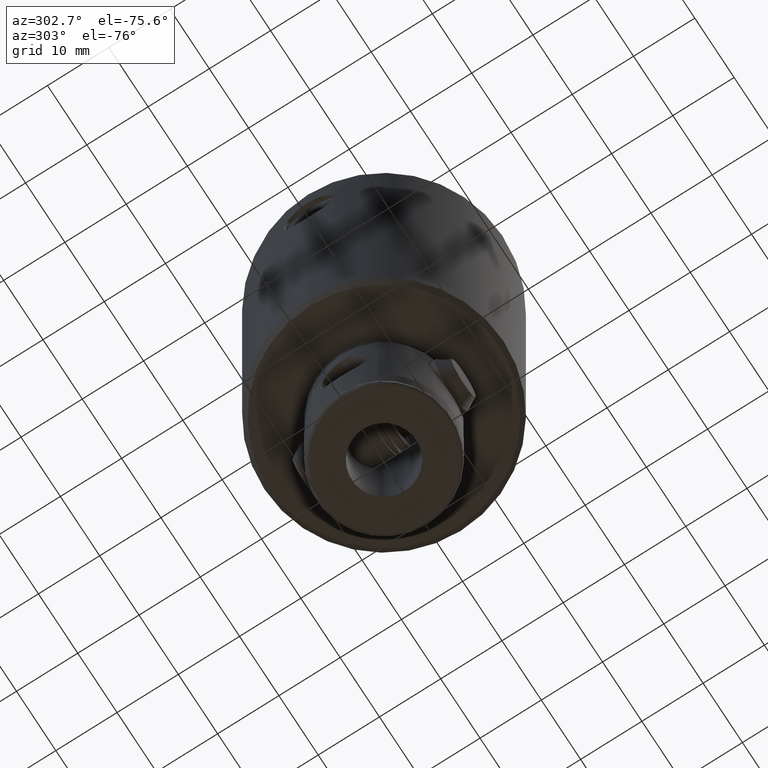
[diagram: clean part render]
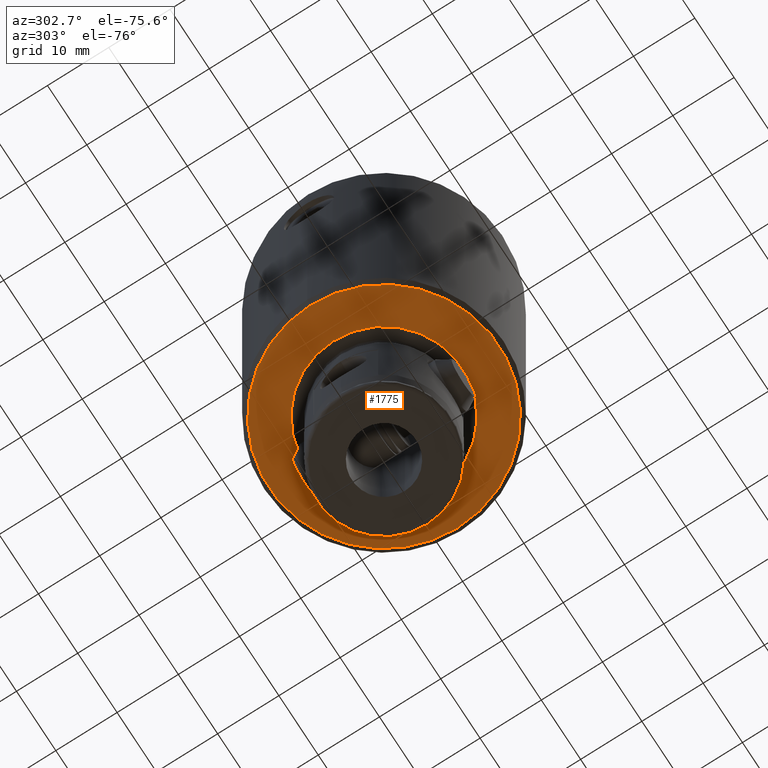
[diagram: same view with one face highlighted and labeled with its STEP entity id]
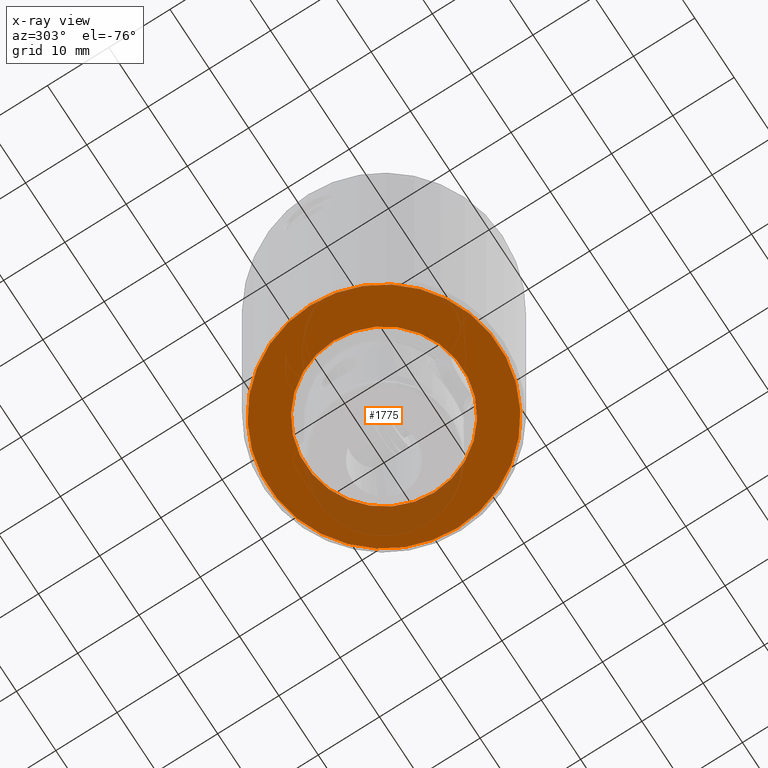
[diagram: x-ray of the same camera — body ghosted, the highlighted face saturated]
A machine part, auxiliary view. The second image highlights one B-rep face of the part: STEP entity #1775.
The next image is the same camera in x-ray: the body ghosted, the highlighted face saturated — about 14% of this face is hidden behind the body in this view.
In plain terms, the highlighted planar face has unit normal (-0, 0, -1).
Its self-contained STEP definition (entity closure, byte-faithful):
#45 = EDGE_LOOP ( 'NONE', ( #3941, #2863 ) ) ;
#162 = FACE_OUTER_BOUND ( 'NONE', #4342, .T. ) ;
#210 = DIRECTION ( 'NONE',  ( 0.0000000000000000000, 0.0000000000000000000, 1.000000000000000000 ) ) ;
#277 = AXIS2_PLACEMENT_3D ( 'NONE', #3891, #1684, #4253 ) ;
#517 = VERTEX_POINT ( 'NONE', #4008 ) ;
#534 = CARTESIAN_POINT ( 'NONE',  ( 0.0000000000000000000, 0.0000000000000000000, 60.00000000000000000 ) ) ;
#708 = CIRCLE ( 'NONE', #277, 12.79524911219973200 ) ;
#893 = DIRECTION ( 'NONE',  ( 1.000000000000000000, 0.0000000000000000000, 0.0000000000000000000 ) ) ;
#1018 = EDGE_CURVE ( 'NONE', #2460, #2475, #2023, .T. ) ;
#1244 = FACE_BOUND ( 'NONE', #45, .T. ) ;
#1296 = AXIS2_PLACEMENT_3D ( 'NONE', #4462, #4185, #1975 ) ;
#1334 = AXIS2_PLACEMENT_3D ( 'NONE', #534, #3064, #893 ) ;
#1616 = CARTESIAN_POINT ( 'NONE',  ( 18.75000000000000000, 2.342137003369313300E-015, 60.00000000000000000 ) ) ;
#1657 = VERTEX_POINT ( 'NONE', #4346 ) ;
#1684 = DIRECTION ( 'NONE',  ( 0.0000000000000000000, 0.0000000000000000000, 1.000000000000000000 ) ) ;
#1775 = ADVANCED_FACE ( 'NONE', ( #1244, #162 ), #3364, .T. ) ;
#1957 = DIRECTION ( 'NONE',  ( 1.000000000000000000, 0.0000000000000000000, 0.0000000000000000000 ) ) ;
#1975 = DIRECTION ( 'NONE',  ( 1.000000000000000000, 0.0000000000000000000, 0.0000000000000000000 ) ) ;
#2023 = CIRCLE ( 'NONE', #4020, 18.75000000000000000 ) ;
#2053 = ORIENTED_EDGE ( 'NONE', *, *, #3481, .T. ) ;
#2396 = CARTESIAN_POINT ( 'NONE',  ( 0.0000000000000000000, 0.0000000000000000000, 60.00000000000000000 ) ) ;
#2460 = VERTEX_POINT ( 'NONE', #1616 ) ;
#2475 = VERTEX_POINT ( 'NONE', #4574 ) ;
#2522 = EDGE_CURVE ( 'NONE', #1657, #517, #708, .T. ) ;
#2761 = DIRECTION ( 'NONE',  ( 1.000000000000000000, 0.0000000000000000000, 0.0000000000000000000 ) ) ;
#2863 = ORIENTED_EDGE ( 'NONE', *, *, #2522, .F. ) ;
#2890 = CIRCLE ( 'NONE', #3539, 18.75000000000000000 ) ;
#3064 = DIRECTION ( 'NONE',  ( 0.0000000000000000000, 0.0000000000000000000, 1.000000000000000000 ) ) ;
#3104 = CARTESIAN_POINT ( 'NONE',  ( 0.0000000000000000000, 0.0000000000000000000, 60.00000000000000000 ) ) ;
#3364 = PLANE ( 'NONE',  #1296 ) ;
#3377 = EDGE_CURVE ( 'NONE', #517, #1657, #3992, .T. ) ;
#3481 = EDGE_CURVE ( 'NONE', #2475, #2460, #2890, .T. ) ;
#3539 = AXIS2_PLACEMENT_3D ( 'NONE', #2396, #210, #2761 ) ;
#3554 = DIRECTION ( 'NONE',  ( 0.0000000000000000000, 0.0000000000000000000, 1.000000000000000000 ) ) ;
#3658 = ORIENTED_EDGE ( 'NONE', *, *, #1018, .T. ) ;
#3891 = CARTESIAN_POINT ( 'NONE',  ( 0.0000000000000000000, 0.0000000000000000000, 60.00000000000000000 ) ) ;
#3941 = ORIENTED_EDGE ( 'NONE', *, *, #3377, .F. ) ;
#3992 = CIRCLE ( 'NONE', #1334, 12.79524911219973200 ) ;
#4008 = CARTESIAN_POINT ( 'NONE',  ( 12.79524911219973200, 0.0000000000000000000, 60.00000000000000000 ) ) ;
#4020 = AXIS2_PLACEMENT_3D ( 'NONE', #3104, #3554, #1957 ) ;
#4185 = DIRECTION ( 'NONE',  ( 0.0000000000000000000, 0.0000000000000000000, 1.000000000000000000 ) ) ;
#4253 = DIRECTION ( 'NONE',  ( 1.000000000000000000, 0.0000000000000000000, 0.0000000000000000000 ) ) ;
#4342 = EDGE_LOOP ( 'NONE', ( #2053, #3658 ) ) ;
#4346 = CARTESIAN_POINT ( 'NONE',  ( -12.79524911219973200, 1.566966086954841300E-015, 60.00000000000000000 ) ) ;
#4462 = CARTESIAN_POINT ( 'NONE',  ( 0.0000000000000000000, 0.0000000000000000000, 60.00000000000000000 ) ) ;
#4574 = CARTESIAN_POINT ( 'NONE',  ( -18.75000000000000000, 0.0000000000000000000, 60.00000000000000000 ) ) ;